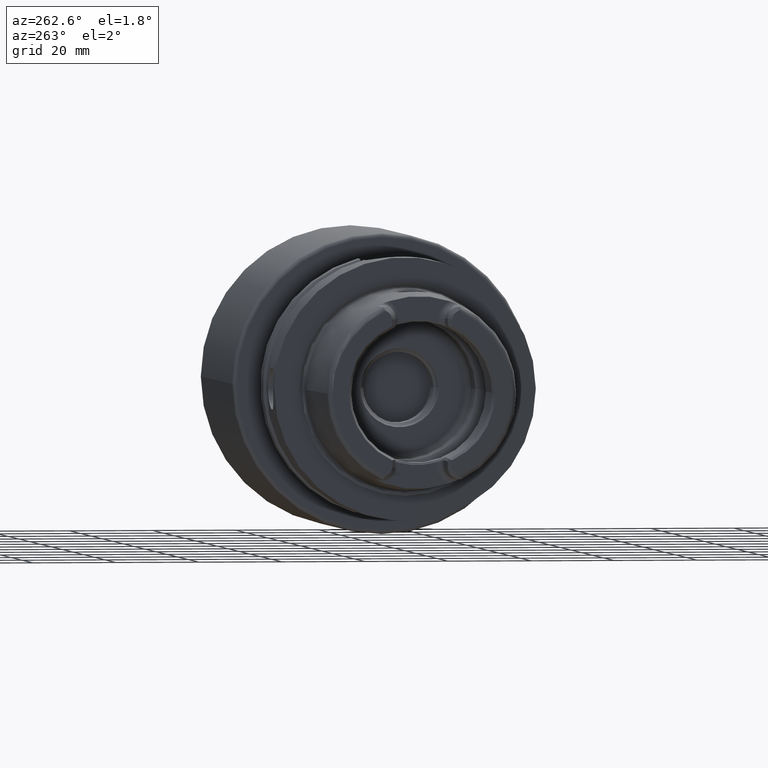
[diagram: clean part render]
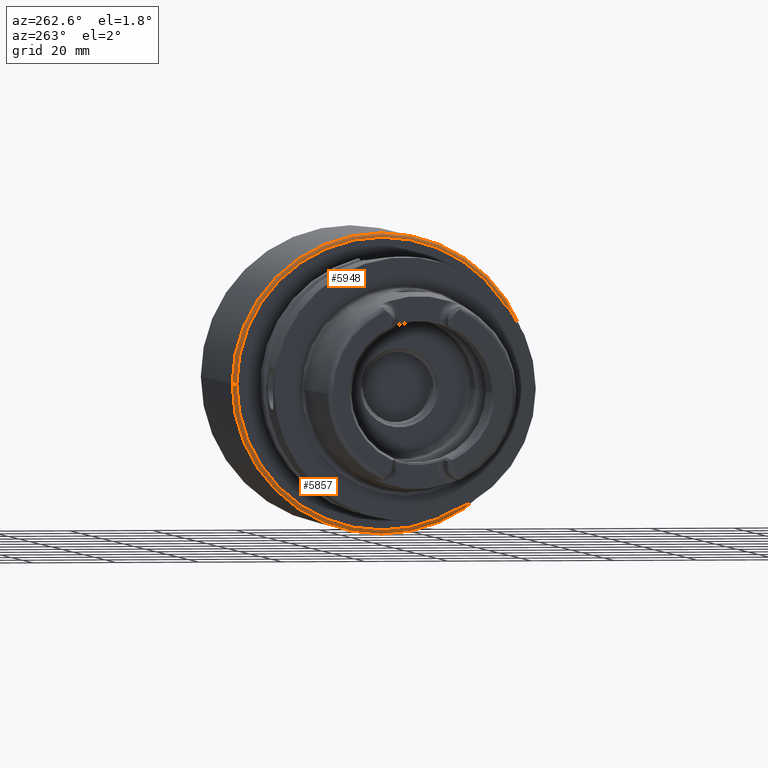
[diagram: same view with one multi-face feature highlighted, each face labeled with its STEP entity id]
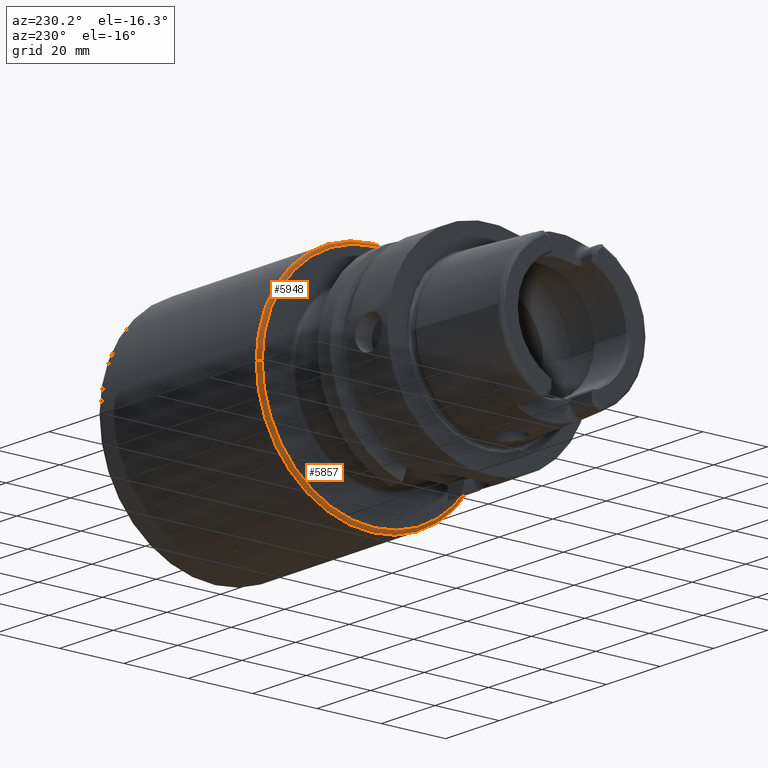
[diagram: same view with one multi-face feature highlighted, each face labeled with its STEP entity id]
A machine part, auxiliary view. The highlighted faces form ONE feature: a constant-radius fillet chain: 2 tangent blend faces with common blend radius 1 mm. The faces share edges in the B-rep.
A second angle (auxiliary view) of the same feature is appended — it is thin or edge-on in the first view.
Their STEP definitions:
[1] entity #5857 (Torus):
#1458=CARTESIAN_POINT('',(4.25E1,0.E0,0.E0));
#1459=DIRECTION('',(1.E0,0.E0,0.E0));
#1460=DIRECTION('',(0.E0,-1.E0,0.E0));
#1461=AXIS2_PLACEMENT_3D('',#1458,#1459,#1460);
#2105=CARTESIAN_POINT('',(4.35E1,-3.5E1,1.732253229747E-12));
#2106=DIRECTION('',(0.E0,-4.949296181223E-14,-1.E0));
#2107=DIRECTION('',(0.E0,-1.E0,4.949296181223E-14));
#2108=AXIS2_PLACEMENT_3D('',#2105,#2106,#2107);
#2189=CARTESIAN_POINT('',(4.35E1,0.E0,0.E0));
#2190=DIRECTION('',(1.E0,0.E0,0.E0));
#2191=DIRECTION('',(0.E0,-1.E0,0.E0));
#2192=AXIS2_PLACEMENT_3D('',#2189,#2190,#2191);
#2288=CARTESIAN_POINT('',(4.35E1,3.5E1,-1.752098466312E-12));
#2289=DIRECTION('',(0.E0,5.006021638887E-14,1.E0));
#2290=DIRECTION('',(0.E0,1.E0,-5.006021638887E-14));
#2291=AXIS2_PLACEMENT_3D('',#2288,#2289,#2290);
#3535=CARTESIAN_POINT('',(4.35E1,-3.6E1,0.E0));
#3536=CARTESIAN_POINT('',(4.35E1,3.6E1,0.E0));
#3537=VERTEX_POINT('',#3535);
#3538=VERTEX_POINT('',#3536);
#3539=CARTESIAN_POINT('',(4.25E1,-3.5E1,0.E0));
#3540=CARTESIAN_POINT('',(4.25E1,3.5E1,0.E0));
#3541=VERTEX_POINT('',#3539);
#3542=VERTEX_POINT('',#3540);
#5843=CARTESIAN_POINT('',(4.35E1,0.E0,0.E0));
#5844=DIRECTION('',(1.E0,0.E0,0.E0));
#5845=DIRECTION('',(0.E0,-9.999974941868E-1,2.238664796774E-3));
#5846=AXIS2_PLACEMENT_3D('',#5843,#5844,#5845);
#5847=TOROIDAL_SURFACE('',#5846,3.5E1,1.E0);
#5849=ORIENTED_EDGE('',*,*,#5848,.T.);
#5851=ORIENTED_EDGE('',*,*,#5850,.T.);
#5852=ORIENTED_EDGE('',*,*,#5172,.F.);
#5854=ORIENTED_EDGE('',*,*,#5853,.F.);
#5855=EDGE_LOOP('',(#5849,#5851,#5852,#5854));
#5856=FACE_OUTER_BOUND('',#5855,.F.);
#5857=ADVANCED_FACE('',(#5856),#5847,.T.);
#1462=CIRCLE('',#1461,3.5E1);
#2109=CIRCLE('',#2108,1.E0);
#2193=CIRCLE('',#2192,3.6E1);
#2292=CIRCLE('',#2291,1.E0);
#5172=EDGE_CURVE('',#3541,#3542,#1462,.T.);
#5848=EDGE_CURVE('',#3537,#3538,#2193,.T.);
#5850=EDGE_CURVE('',#3538,#3542,#2292,.T.);
#5853=EDGE_CURVE('',#3537,#3541,#2109,.T.);
[2] entity #5948 (Torus):
#1463=CARTESIAN_POINT('',(4.25E1,0.E0,0.E0));
#1464=DIRECTION('',(1.E0,0.E0,0.E0));
#1465=DIRECTION('',(0.E0,1.E0,0.E0));
#1466=AXIS2_PLACEMENT_3D('',#1463,#1464,#1465);
#2105=CARTESIAN_POINT('',(4.35E1,-3.5E1,1.732253229747E-12));
#2106=DIRECTION('',(0.E0,-4.949296181223E-14,-1.E0));
#2107=DIRECTION('',(0.E0,-1.E0,4.949296181223E-14));
#2108=AXIS2_PLACEMENT_3D('',#2105,#2106,#2107);
#2247=CARTESIAN_POINT('',(4.35E1,0.E0,0.E0));
#2248=DIRECTION('',(1.E0,0.E0,0.E0));
#2249=DIRECTION('',(0.E0,1.E0,0.E0));
#2250=AXIS2_PLACEMENT_3D('',#2247,#2248,#2249);
#2288=CARTESIAN_POINT('',(4.35E1,3.5E1,-1.752098466312E-12));
#2289=DIRECTION('',(0.E0,5.006021638887E-14,1.E0));
#2290=DIRECTION('',(0.E0,1.E0,-5.006021638887E-14));
#2291=AXIS2_PLACEMENT_3D('',#2288,#2289,#2290);
#3535=CARTESIAN_POINT('',(4.35E1,-3.6E1,0.E0));
#3536=CARTESIAN_POINT('',(4.35E1,3.6E1,0.E0));
#3537=VERTEX_POINT('',#3535);
#3538=VERTEX_POINT('',#3536);
#3539=CARTESIAN_POINT('',(4.25E1,-3.5E1,0.E0));
#3540=CARTESIAN_POINT('',(4.25E1,3.5E1,0.E0));
#3541=VERTEX_POINT('',#3539);
#3542=VERTEX_POINT('',#3540);
#5937=CARTESIAN_POINT('',(4.35E1,0.E0,0.E0));
#5938=DIRECTION('',(1.E0,0.E0,0.E0));
#5939=DIRECTION('',(0.E0,9.999974941868E-1,-2.238664796773E-3));
#5940=AXIS2_PLACEMENT_3D('',#5937,#5938,#5939);
#5941=TOROIDAL_SURFACE('',#5940,3.5E1,1.E0);
#5942=ORIENTED_EDGE('',*,*,#5925,.T.);
#5943=ORIENTED_EDGE('',*,*,#5853,.T.);
#5944=ORIENTED_EDGE('',*,*,#5174,.F.);
#5945=ORIENTED_EDGE('',*,*,#5850,.F.);
#5946=EDGE_LOOP('',(#5942,#5943,#5944,#5945));
#5947=FACE_OUTER_BOUND('',#5946,.F.);
#5948=ADVANCED_FACE('',(#5947),#5941,.T.);
#1467=CIRCLE('',#1466,3.5E1);
#2109=CIRCLE('',#2108,1.E0);
#2251=CIRCLE('',#2250,3.6E1);
#2292=CIRCLE('',#2291,1.E0);
#5174=EDGE_CURVE('',#3542,#3541,#1467,.T.);
#5850=EDGE_CURVE('',#3538,#3542,#2292,.T.);
#5853=EDGE_CURVE('',#3537,#3541,#2109,.T.);
#5925=EDGE_CURVE('',#3538,#3537,#2251,.T.);